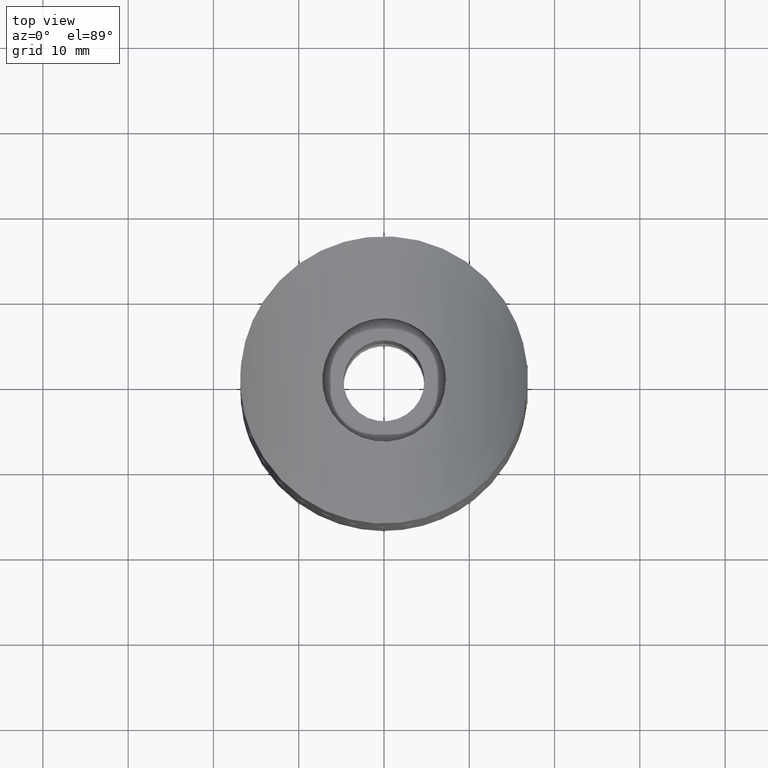
[diagram: clean part render]
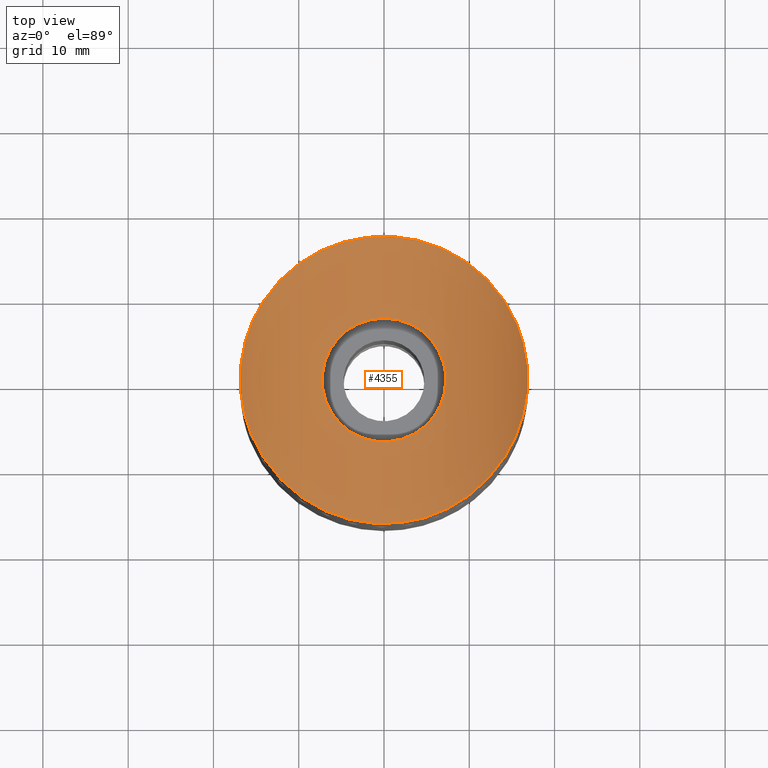
[diagram: same view with one face highlighted and labeled with its STEP entity id]
A machine part, top view. The second image highlights one B-rep face of the part: STEP entity #4355.
In plain terms, the highlighted cylindrical surface (partial cylindrical patch) has radius 21.2 mm, axis along (0, 1, 0).
Its self-contained STEP definition (entity closure, byte-faithful):
#7 = CARTESIAN_POINT ( 'NONE',  ( 12.14784170154766407, -11.68723754140081716, 28.82084089679802474 ) ) ;
#117 = CARTESIAN_POINT ( 'NONE',  ( -0.9587532348326602838, 7.190350821776163137, 25.02033660952204386 ) ) ;
#151 = CARTESIAN_POINT ( 'NONE',  ( 5.358378406793971926, -15.98417104893211693, 25.68166419200519712 ) ) ;
#154 = CARTESIAN_POINT ( 'NONE',  ( 8.169526389507437258, 14.74616821905684283, 26.63106651715606432 ) ) ;
#197 = CARTESIAN_POINT ( 'NONE',  ( 2.226111781718973504, -16.71136270365287047, 25.11004907578960044 ) ) ;
#204 = CARTESIAN_POINT ( 'NONE',  ( -5.336367273435848269, 15.99150897234712865, 25.67594462300922586 ) ) ;
#246 = CARTESIAN_POINT ( 'NONE',  ( -12.80575477641203008, -10.99506568324726885, 29.28733733575847964 ) ) ;
#254 = CARTESIAN_POINT ( 'NONE',  ( 8.612801258602942767, 14.49133680741023333, 26.82261412847639193 ) ) ;
#295 = CARTESIAN_POINT ( 'NONE',  ( -16.75380553784719950, 1.797915459636668878, 33.20961894323340147 ) ) ;
#402 = CARTESIAN_POINT ( 'NONE',  ( -0.4800756467866370003, 7.238085387647868352, 25.00408349533767094 ) ) ;
#560 = CARTESIAN_POINT ( 'NONE',  ( 1.658086648949340436, -7.061898216450463117, 25.06363438643857933 ) ) ;
#622 = EDGE_CURVE ( 'NONE', #13150, #10591, #10017, .T. ) ;
#657 = CARTESIAN_POINT ( 'NONE',  ( 5.892557090182336310, -4.230376132583586468, 25.83491791462317266 ) ) ;
#747 = CARTESIAN_POINT ( 'NONE',  ( 3.640337174190668712, -6.287877510260853064, 25.31099678021441335 ) ) ;
#790 = CARTESIAN_POINT ( 'NONE',  ( -0.9566369692030692873, -7.202342973613696131, 25.01643312506579875 ) ) ;
#833 = CARTESIAN_POINT ( 'NONE',  ( -4.960688375816871165, 5.292462506426915958, 25.58783515313074375 ) ) ;
#878 = CARTESIAN_POINT ( 'NONE',  ( -2.346359400707022314, 6.876387900135069842, 25.12556071525185075 ) ) ;
#931 = CARTESIAN_POINT ( 'NONE',  ( -3.223449022790387364, 6.498295588379971122, 25.24543072876374339 ) ) ;
#956 = CARTESIAN_POINT ( 'NONE',  ( 7.062527813327395876, 1.655145732846094120, 26.21092440739839446 ) ) ;
#965 = CARTESIAN_POINT ( 'NONE',  ( -16.83713731922741985, 0.6049456236737296155, 33.31781047734004630 ) ) ;
#976 = CARTESIAN_POINT ( 'NONE',  ( -0.4722111775666738565, -7.250316275388796861, 24.99989183980574836 ) ) ;
#1107 = CARTESIAN_POINT ( 'NONE',  ( -16.75380553784744464, -1.797915459634364943, 33.20961894323372121 ) ) ;
#1204 = CARTESIAN_POINT ( 'NONE',  ( -3.799131235580128774, 16.42494322206031043, 25.33634400596605118 ) ) ;
#1260 = CARTESIAN_POINT ( 'NONE',  ( 9.879719700273652094, 13.65886599007097146, 27.43734619141542908 ) ) ;
#1305 = CARTESIAN_POINT ( 'NONE',  ( 15.81468342291589657, 5.907119930207309189, 32.07368849711814818 ) ) ;
#1400 = CARTESIAN_POINT ( 'NONE',  ( -7.307117564174850699, 15.21988607760609469, 26.27266255987092336 ) ) ;
#1416 = ORIENTED_EDGE ( 'NONE', *, *, #12349, .F. ) ;
#1504 = CARTESIAN_POINT ( 'NONE',  ( -0.2388465963188745045, 7.250001156584477968, 24.99999960446994152 ) ) ;
#1543 = EDGE_CURVE ( 'NONE', #13599, #13599, #2425, .T. ) ;
#1692 = CARTESIAN_POINT ( 'NONE',  ( 0.9512028090831824434, 7.203228716476409943, 25.01613312446809090 ) ) ;
#1751 = CARTESIAN_POINT ( 'NONE',  ( 5.292002883686151016, -4.961068277643231994, 25.67041370422165514 ) ) ;
#1790 = CARTESIAN_POINT ( 'NONE',  ( -16.75380553784719950, 1.797915459636668878, 33.20961894323340147 ) ) ;
#1878 = CARTESIAN_POINT ( 'NONE',  ( -5.759433065516850192, -4.428706587053825139, 25.79549507831404398 ) ) ;
#2065 = CARTESIAN_POINT ( 'NONE',  ( -4.961887728149400267, -5.291291510677460508, 25.58813029866553634 ) ) ;
#2088 = CARTESIAN_POINT ( 'NONE',  ( 4.432367805953222550, 5.756904445230272671, 25.46463419026553154 ) ) ;
#2155 = CARTESIAN_POINT ( 'NONE',  ( 15.20531351964298850, -7.277979822336642535, 31.42358611185059303 ) ) ;
#2311 = CARTESIAN_POINT ( 'NONE',  ( 2.144770709731461444, 16.72175678162838608, 25.10180907550674689 ) ) ;
#2349 = CARTESIAN_POINT ( 'NONE',  ( -16.69637106392835690, -2.333116379150808495, 33.13554521106189554 ) ) ;
#2353 = CARTESIAN_POINT ( 'NONE',  ( 12.15067100014986501, 11.71608894380430321, 28.80603942311008936 ) ) ;
#2367 = B_SPLINE_CURVE_WITH_KNOTS ( 'NONE', 3,
 ( #3222, #13381, #10966, #4374, #12069, #7778, #5456, #13179, #7685, #8786, #2155, #9898, #3263, #12114, #13230, #7, #8836, #9947, #3318, #11052, #5554, #2446, #151, #5690, #10091, #3449, #197, #12512, #11207, #13568, #2537, #4764, #4572, #6744, #5799, #13428, #12457, #10181, #12314, #11393, #2393, #8032, #13523, #7880, #246, #3637, #12411, #3585, #11306, #10290, #8083, #5878, #4665, #3547, #2349, #10238 ),
 .UNSPECIFIED., .F., .F.,
 ( 4, 2, 2, 2, 2, 2, 2, 2, 2, 2, 2, 2, 2, 2, 2, 2, 2, 2, 2, 2, 2, 2, 2, 2, 2, 2, 2, 4 ),
 ( 0.05762379732413834554, 0.05843939610888660569, 0.05925499489363487277, 0.06088619246313139999, 0.06251739003262793415, 0.06414858760212446831, 0.06741098274111752275, 0.06904218031061404304, 0.07067337788011057720, 0.07393577301910363164, 0.07719816815809668609, 0.07882936572759322025, 0.08046056329708975441, 0.08209176086658628857, 0.08372295843608282273, 0.08535415600557935689, 0.08698535357507587717, 0.09024774871406893162, 0.09187894628356546578, 0.09351014385306199994, 0.09514134142255853410, 0.09677253899205506826, 0.1000349341310481366, 0.1016661317005446707, 0.1032973292700412049, 0.1065597244090342732, 0.1081909219785307796, 0.1098221195480273138 ),
 .UNSPECIFIED. ) ;
#2393 = CARTESIAN_POINT ( 'NONE',  ( -9.874391082289394106, -13.66273255866296665, 27.43453152128715189 ) ) ;
#2401 = CARTESIAN_POINT ( 'NONE',  ( 16.26849822515842092, 4.418982904158281322, 32.60477335205871441 ) ) ;
#2425 = B_SPLINE_CURVE_WITH_KNOTS ( 'NONE', 3,
 ( #2819, #6191, #10556, #11668, #5037, #11757, #12770, #7261, #9532, #657, #2952, #8389, #1751, #12868, #6236, #747, #4059, #11807, #6290, #7169, #560, #8284, #6331, #976, #790, #5415, #3049, #3187, #10787, #8708, #6371, #3090, #2065, #5229, #1878, #4199, #9806, #5275, #10927, #7454, #7546, #8528, #8654, #3147, #4288, #13138, #14020, #13006, #7407, #14117, #5320, #3002, #833, #10874, #7503, #13053, #10739, #12952, #931, #8568, #878, #8609, #6702, #117, #402, #1504, #2654, #1692, #7397, #8600, #9709, #5501, #11495, #10212, #2717, #11440, #2088, #6775, #13793, #13077, #12019, #10813, #6397, #6456, #4225, #956, #13035, #4176, #8686 ),
 .UNSPECIFIED., .T., .F.,
 ( 4, 2, 2, 2, 2, 2, 2, 2, 2, 2, 2, 2, 2, 2, 2, 2, 2, 2, 2, 2, 2, 1, 2, 2, 2, 2, 2, 2, 2, 2, 2, 2, 2, 2, 2, 2, 2, 2, 2, 2, 2, 2, 2, 2, 4 ),
 ( 0.000000000000000000, 0.001427308038129306532, 0.002140962057193959798, 0.002854616076258613064, 0.004281924114387921330, 0.004995578133452572428, 0.005709232152517225260, 0.007136540190646527455, 0.008563848228775828783, 0.009277502247840480748, 0.009991156266905130978, 0.01141846430503443144, 0.01284577234316373710, 0.01427308038129303583, 0.01570038841942233976, 0.01641404243848698999, 0.01712769645755164022, 0.01855500449568094068, 0.01998231253381023767, 0.02140962057193953813, 0.02212327459100418836, 0.02283692861006883512, 0.02355058262913348535, 0.02426423664819812864, 0.02569154468632742910, 0.02711885272445672262, 0.02854616076258602309, 0.02925981478165067332, 0.02997346880071532355, 0.03068712281977997031, 0.03140077683884461707, 0.03282808487697392447, 0.03354173889603856429, 0.03425539291510321799, 0.03568270095323251151, 0.03639635497229715827, 0.03711000899136181197, 0.03782366301042645179, 0.03853731702949110549, 0.03996462506762039901, 0.04139193310574969947, 0.04281924114387899993, 0.04353289516294364669, 0.04424654918200830039, 0.04567385722013758698 ),
 .UNSPECIFIED. ) ;
#2446 = CARTESIAN_POINT ( 'NONE',  ( 5.861876297262081259, -15.80630658064992744, 25.82008765974585884 ) ) ;
#2451 = CARTESIAN_POINT ( 'NONE',  ( -12.16653524012214227, 11.69924100671745570, 28.81735680001559174 ) ) ;
#2502 = CARTESIAN_POINT ( 'NONE',  ( -14.50563928189218466, 8.587789373369821178, 30.73546195249033630 ) ) ;
#2537 = CARTESIAN_POINT ( 'NONE',  ( -1.047622871701130221, -16.82617475906373272, 25.01895457081716856 ) ) ;
#2654 = CARTESIAN_POINT ( 'NONE',  ( 0.4777985065261786124, 7.249997686576094225, 25.00000079114732543 ) ) ;
#2717 = CARTESIAN_POINT ( 'NONE',  ( 3.636215122921611975, 6.276662310834707270, 25.31309908041850676 ) ) ;
#2819 = CARTESIAN_POINT ( 'NONE',  ( 7.250000000000000888, 4.336808689942017736E-16, 26.27821544138177146 ) ) ;
#2952 = CARTESIAN_POINT ( 'NONE',  ( 5.750198254161105638, -4.421941696019373147, 25.79413230358358078 ) ) ;
#3002 = CARTESIAN_POINT ( 'NONE',  ( -5.462926514089700980, 4.789915247397692255, 25.71304050749441927 ) ) ;
#3049 = CARTESIAN_POINT ( 'NONE',  ( -2.343731365980564973, -6.877354188263144152, 25.12524757484252547 ) ) ;
#3090 = CARTESIAN_POINT ( 'NONE',  ( -4.785265091308676944, -5.451572531739593330, 25.54627725870567900 ) ) ;
#3147 = CARTESIAN_POINT ( 'NONE',  ( -7.238519723795990402, 0.4726323275835445648, 26.27402570532306569 ) ) ;
#3187 = CARTESIAN_POINT ( 'NONE',  ( -3.226555368670444235, -6.510024408526108530, 25.24224232055189532 ) ) ;
#3222 = CARTESIAN_POINT ( 'NONE',  ( 16.75380553784718529, -1.797915459636763025, 33.20961894323338726 ) ) ;
#3263 = CARTESIAN_POINT ( 'NONE',  ( 13.99864917260999775, -9.428928461346940182, 30.26089817622014522 ) ) ;
#3285 = B_SPLINE_CURVE_WITH_KNOTS ( 'NONE', 3,
 ( #13238, #8940, #9997, #3364, #9905, #6554 ),
 .UNSPECIFIED., .F., .F.,
 ( 4, 2, 4 ),
 ( 0.006282603839248778431, 0.008077722740527721462, 0.009872841641806665361 ),
 .UNSPECIFIED. ) ;
#3318 = CARTESIAN_POINT ( 'NONE',  ( 9.922135874653822185, -13.65573024371412281, 27.44193756741609036 ) ) ;
#3364 = CARTESIAN_POINT ( 'NONE',  ( 16.83705808198703480, 0.6075081080287652036, 33.31770691421571229 ) ) ;
#3409 = CARTESIAN_POINT ( 'NONE',  ( 4.288095124775098910, 16.33153352628145427, 25.41009414772277353 ) ) ;
#3449 = CARTESIAN_POINT ( 'NONE',  ( 2.763565128029129347, -16.63055004528183645, 25.17409886494595028 ) ) ;
#3459 = CARTESIAN_POINT ( 'NONE',  ( -14.75306275984906179, 8.155817596017406856, 30.97203812562293024 ) ) ;
#3511 = CARTESIAN_POINT ( 'NONE',  ( 16.61322421872186794, 2.864456683789939451, 33.02921195284994837 ) ) ;
#3547 = CARTESIAN_POINT ( 'NONE',  ( -16.61395989766804604, -2.860104366934913322, 33.03014467461200354 ) ) ;
#3550 = CARTESIAN_POINT ( 'NONE',  ( 11.05725543779406905, 12.72420385158253175, 28.10678940156158490 ) ) ;
#3585 = CARTESIAN_POINT ( 'NONE',  ( -14.50379350185093053, -8.591077129407022284, 30.73367796759794146 ) ) ;
#3592 = CARTESIAN_POINT ( 'NONE',  ( -15.81691932689636637, 5.900288470181504152, 32.07626911739440345 ) ) ;
#3637 = CARTESIAN_POINT ( 'NONE',  ( -13.69523529492123615, -9.828637311950920719, 30.01275475370344381 ) ) ;
#3650 = EDGE_LOOP ( 'NONE', ( #12459 ) ) ;
#4059 = CARTESIAN_POINT ( 'NONE',  ( 3.224516823743702076, -6.510582053894638399, 25.24205241274554368 ) ) ;
#4127 = CARTESIAN_POINT ( 'NONE',  ( 0.000000000000000000, -16.85000000000000142, 46.20000000000000284 ) ) ;
#4176 = CARTESIAN_POINT ( 'NONE',  ( 7.250000000000000000, 0.4829326223636202231, 26.27821544138177146 ) ) ;
#4199 = CARTESIAN_POINT ( 'NONE',  ( -6.284210845800435763, -3.645984821129527820, 25.95096090228477692 ) ) ;
#4225 = CARTESIAN_POINT ( 'NONE',  ( 7.004554471377877789, 1.885653695091801252, 26.19046125019305293 ) ) ;
#4288 = CARTESIAN_POINT ( 'NONE',  ( -7.191716234747704384, 0.9480330731187178728, 26.25708554441513343 ) ) ;
#4355 = ADVANCED_FACE ( 'NONE', ( #5711, #8825 ), #7096, .F. ) ;
#4374 = CARTESIAN_POINT ( 'NONE',  ( 16.60678426932988216, -2.865252522061736862, 33.02201781672016523 ) ) ;
#4531 = CARTESIAN_POINT ( 'NONE',  ( -2.743212171241442565, 16.63390949165644628, 25.17144021655068187 ) ) ;
#4572 = CARTESIAN_POINT ( 'NONE',  ( -2.670267878382413418, -16.64599718174675758, 25.16187577647438900 ) ) ;
#4579 = CARTESIAN_POINT ( 'NONE',  ( -16.45308313992315163, 3.645481845178408342, 32.83050756234046474 ) ) ;
#4622 = CARTESIAN_POINT ( 'NONE',  ( 16.75380553784744819, 1.797915459634366275, 33.20961894323372121 ) ) ;
#4665 = CARTESIAN_POINT ( 'NONE',  ( -16.40117179362283650, -3.899413323456883962, 32.76607590578823448 ) ) ;
#4674 = CARTESIAN_POINT ( 'NONE',  ( -13.70251451450455882, 9.818345896335925360, 30.01897497850235297 ) ) ;
#4764 = CARTESIAN_POINT ( 'NONE',  ( -2.129375905199051289, -16.72373848630211057, 25.10023797743738072 ) ) ;
#5037 = CARTESIAN_POINT ( 'NONE',  ( 7.004391776076587028, -1.886298489068188644, 26.19040381408828466 ) ) ;
#5229 = CARTESIAN_POINT ( 'NONE',  ( -5.461870639133845629, -4.790913465329501797, 25.71278499240158055 ) ) ;
#5275 = CARTESIAN_POINT ( 'NONE',  ( -6.874786492142588301, -2.350090507094773962, 26.14472863026726301 ) ) ;
#5320 = CARTESIAN_POINT ( 'NONE',  ( -5.760815841621074185, 4.426872302757085542, 25.79588944834129549 ) ) ;
#5352 = CARTESIAN_POINT ( 'NONE',  ( -16.75380553784719950, 1.797915459636668878, 33.20961894323340147 ) ) ;
#5415 = CARTESIAN_POINT ( 'NONE',  ( -1.889748769253165817, -7.015536201140636585, 25.07921617399669856 ) ) ;
#5456 = CARTESIAN_POINT ( 'NONE',  ( 16.26802396891895341, -4.420290972579389077, 32.60423611358149998 ) ) ;
#5501 = CARTESIAN_POINT ( 'NONE',  ( 2.568855173014323423, 6.783761352755690588, 25.15506023593372475 ) ) ;
#5554 = CARTESIAN_POINT ( 'NONE',  ( 7.328113689039677858, -15.20969873285167218, 26.28045099295936637 ) ) ;
#5654 = CARTESIAN_POINT ( 'NONE',  ( -16.26338901050295149, 4.415185518121612418, 32.60027404866490741 ) ) ;
#5690 = CARTESIAN_POINT ( 'NONE',  ( 4.338623556160785100, -16.29055827495922415, 25.44209381662098934 ) ) ;
#5699 = CARTESIAN_POINT ( 'NONE',  ( 13.69601455258159106, 9.827532191674912099, 30.01342196753115132 ) ) ;
#5711 = FACE_BOUND ( 'NONE', #3650, .T. ) ;
#5754 = CARTESIAN_POINT ( 'NONE',  ( -8.216568726637952125, 14.74550625619387390, 26.63435696207914205 ) ) ;
#5799 = CARTESIAN_POINT ( 'NONE',  ( -5.295640238658860355, -16.03075755658450774, 25.64663496829462019 ) ) ;
#5878 = CARTESIAN_POINT ( 'NONE',  ( -16.26968676083988186, -4.414653115392175309, 32.60619533452197061 ) ) ;
#6191 = CARTESIAN_POINT ( 'NONE',  ( 7.250000000000000888, -0.4829326223636261628, 26.27821544138177146 ) ) ;
#6236 = CARTESIAN_POINT ( 'NONE',  ( 4.431842194841499882, -5.757450224349423884, 25.46449216879341293 ) ) ;
#6290 = CARTESIAN_POINT ( 'NONE',  ( 2.348359331223845992, -6.863274511579636084, 25.12922162904524370 ) ) ;
#6331 = CARTESIAN_POINT ( 'NONE',  ( 0.4818734902393386199, -7.249680505290641896, 25.00010926114104493 ) ) ;
#6371 = CARTESIAN_POINT ( 'NONE',  ( -4.419892896670888582, -5.751778146353815124, 25.46501574993814287 ) ) ;
#6397 = CARTESIAN_POINT ( 'NONE',  ( 6.783783114446718443, 2.568883994451139241, 26.11444431597576710 ) ) ;
#6456 = CARTESIAN_POINT ( 'NONE',  ( 6.865358533641771288, 2.342290632023552366, 26.14227638720989688 ) ) ;
#6554 = CARTESIAN_POINT ( 'NONE',  ( 16.75380553784744819, 1.797915459634366275, 33.20961894323372121 ) ) ;
#6702 = CARTESIAN_POINT ( 'NONE',  ( -1.194776294910109504, 7.154817448180724959, 25.03240748984039499 ) ) ;
#6744 = CARTESIAN_POINT ( 'NONE',  ( -4.275487582432500488, -16.33495995711751547, 25.40740007888074103 ) ) ;
#6751 = CARTESIAN_POINT ( 'NONE',  ( 6.769805067169788693, 15.43918504160768279, 26.10347206256634678 ) ) ;
#6775 = CARTESIAN_POINT ( 'NONE',  ( 4.794854175872543145, 5.458268951572305738, 25.54651072145666291 ) ) ;
#6804 = CARTESIAN_POINT ( 'NONE',  ( 14.75099718467579990, 8.159482255568171638, 30.97004999902917888 ) ) ;
#6845 = CARTESIAN_POINT ( 'NONE',  ( -13.98083161575371314, 9.418070111741503325, 30.25942738383626107 ) ) ;
#6892 = CARTESIAN_POINT ( 'NONE',  ( -16.39327470766794193, 3.905410301788218685, 32.75712410169236932 ) ) ;
#6948 = VERTEX_POINT ( 'NONE', #12925 ) ;
#7096 = CYLINDRICAL_SURFACE ( 'NONE', #10598, 21.19999999999999574 ) ;
#7169 = CARTESIAN_POINT ( 'NONE',  ( 1.892431338738990831, -7.002716058644915975, 25.08339051043943968 ) ) ;
#7261 = CARTESIAN_POINT ( 'NONE',  ( 6.509725557862076961, -3.226624134545732492, 26.02326916184721739 ) ) ;
#7397 = CARTESIAN_POINT ( 'NONE',  ( 1.654782290350953478, 7.062676068814879748, 25.06337429442421438 ) ) ;
#7407 = CARTESIAN_POINT ( 'NONE',  ( -6.512538062397737804, 3.220837523552804615, 26.02418295756668698 ) ) ;
#7454 = CARTESIAN_POINT ( 'NONE',  ( -7.155043788601264332, -1.193796978232354755, 26.24385170633055964 ) ) ;
#7503 = CARTESIAN_POINT ( 'NONE',  ( -4.420518731307494065, 5.751258890511367738, 25.46515579548953312 ) ) ;
#7546 = CARTESIAN_POINT ( 'NONE',  ( -7.190882583206957612, -0.9543925950206314512, 26.25678463686065101 ) ) ;
#7685 = CARTESIAN_POINT ( 'NONE',  ( 15.79722130753614273, -5.884323297562113808, 32.05903466573799676 ) ) ;
#7751 = B_SPLINE_CURVE_WITH_KNOTS ( 'NONE', 3,
 ( #295, #9119, #13529, #4579, #6892, #5654, #7837, #3592, #8040, #3459, #2502, #6845, #4674, #10046, #2451, #12370, #10244, #11314, #12416, #5754, #1400, #12262, #204, #11353, #1204, #4531, #13477, #12464, #13335, #8937, #12321, #2311, #13390, #3409, #11168, #6751, #11213, #154, #254, #7889, #1260, #8983, #3550, #2353, #10097, #5699, #10187, #13432, #6804, #7931, #1305, #2401, #10141, #3511, #11261, #4622 ),
 .UNSPECIFIED., .F., .F.,
 ( 4, 2, 2, 2, 2, 2, 2, 2, 2, 2, 2, 2, 2, 2, 2, 2, 2, 2, 2, 2, 2, 2, 2, 2, 2, 2, 2, 4 ),
 ( 0.001797071188729705820, 0.003429396536276128025, 0.004245559210049341947, 0.005061721883822555001, 0.008326372578915426301, 0.009958697926461862818, 0.01159102327400829760, 0.01485567396910117063, 0.01648799931664760368, 0.01812032466419403673, 0.02138497535928690976, 0.02301730070683334975, 0.02464962605437978974, 0.02628195140192622972, 0.02791427674947266971, 0.02954660209701910970, 0.03117892744456554621, 0.03444357813965841925, 0.03607590348720485229, 0.03770822883475128534, 0.03934055418229771839, 0.04097287952984415144, 0.04423753022493701753, 0.04586985557248345752, 0.04750218092002989750, 0.05076683161512276360, 0.05239915696266919665, 0.05403148231021562969 ),
 .UNSPECIFIED. ) ;
#7778 = CARTESIAN_POINT ( 'NONE',  ( 16.39769156396029359, -3.914395231886452109, 32.76180958509625896 ) ) ;
#7837 = CARTESIAN_POINT ( 'NONE',  ( -16.19317297380285581, 4.665861560800693475, 32.51663168366926726 ) ) ;
#7880 = CARTESIAN_POINT ( 'NONE',  ( -12.14829044945831527, -11.71866700652318904, 28.80431455712911770 ) ) ;
#7889 = CARTESIAN_POINT ( 'NONE',  ( 9.467902566528589858, 13.94768830224980682, 27.22574771631734336 ) ) ;
#7931 = CARTESIAN_POINT ( 'NONE',  ( 15.43333503724850075, 6.835272058449380239, 31.65127670461850684 ) ) ;
#7963 = ORIENTED_EDGE ( 'NONE', *, *, #11146, .F. ) ;
#8032 = CARTESIAN_POINT ( 'NONE',  ( -10.66925105049445222, -13.05147279953754769, 27.87478544482808118 ) ) ;
#8040 = CARTESIAN_POINT ( 'NONE',  ( -15.43657138871976287, 6.828297707567234198, 31.65465715993374829 ) ) ;
#8083 = CARTESIAN_POINT ( 'NONE',  ( -15.81587402105427387, -5.904075427236818996, 32.07502002598859292 ) ) ;
#8162 = EDGE_CURVE ( 'NONE', #6948, #11564, #3285, .T. ) ;
#8284 = CARTESIAN_POINT ( 'NONE',  ( 0.9548202249930327623, -7.202739017739377303, 25.01630039204184897 ) ) ;
#8348 = EDGE_LOOP ( 'NONE', ( #7963, #13801, #1416, #12166 ) ) ;
#8389 = CARTESIAN_POINT ( 'NONE',  ( 5.450020823086105359, -4.787026358093296352, 25.71191835642643042 ) ) ;
#8528 = CARTESIAN_POINT ( 'NONE',  ( -7.238136233160389565, -0.4785803622761156673, 26.27388614418867618 ) ) ;
#8568 = CARTESIAN_POINT ( 'NONE',  ( -3.007011386368376282, 6.601309398131062878, 25.21316529528078831 ) ) ;
#8600 = CARTESIAN_POINT ( 'NONE',  ( 1.889166000319857597, 7.003606587722266852, 25.08309510850801516 ) ) ;
#8609 = CARTESIAN_POINT ( 'NONE',  ( -1.893306789193654582, 7.014520785390482516, 25.07955394206430455 ) ) ;
#8654 = CARTESIAN_POINT ( 'NONE',  ( -7.261670843123232189, -0.002871798025565951758, 26.28247452916107108 ) ) ;
#8686 = CARTESIAN_POINT ( 'NONE',  ( 7.250000000000000888, 4.336808689942017736E-16, 26.27821544138177146 ) ) ;
#8687 = DIRECTION ( 'NONE',  ( 0.000000000000000000, 0.000000000000000000, 1.000000000000000000 ) ) ;
#8694 = CARTESIAN_POINT ( 'NONE',  ( -16.83705808198703480, -0.6075081080287976221, 33.31770691421569808 ) ) ;
#8708 = CARTESIAN_POINT ( 'NONE',  ( -4.230815641621740397, -5.892201612857570936, 25.42550046882274373 ) ) ;
#8786 = CARTESIAN_POINT ( 'NONE',  ( 15.41652502934092794, -6.819693375014072245, 31.64493704432103627 ) ) ;
#8825 = FACE_OUTER_BOUND ( 'NONE', #8348, .T. ) ;
#8836 = CARTESIAN_POINT ( 'NONE',  ( 11.80069880928318682, -12.03796462434776693, 28.58264790919936260 ) ) ;
#8937 = CARTESIAN_POINT ( 'NONE',  ( 0.5219374642350144144, 16.85068932348676185, 24.99945211805962586 ) ) ;
#8940 = CARTESIAN_POINT ( 'NONE',  ( 16.80920135048671682, -1.206151923607039045, 33.28106339651910162 ) ) ;
#8983 = CARTESIAN_POINT ( 'NONE',  ( 10.67375571841074766, 13.04777453646355134, 27.87741890015321999 ) ) ;
#9119 = CARTESIAN_POINT ( 'NONE',  ( -16.69628913397185599, 2.333879840274673878, 33.13543954529636437 ) ) ;
#9532 = CARTESIAN_POINT ( 'NONE',  ( 6.286913508811759144, -3.641491956531571095, 25.95179247060378458 ) ) ;
#9688 = CARTESIAN_POINT ( 'NONE',  ( 16.75380553784744819, 1.797915459634366275, 33.20961894323372121 ) ) ;
#9709 = CARTESIAN_POINT ( 'NONE',  ( 2.345654572570459173, 6.864208478661655732, 25.12891732731176830 ) ) ;
#9806 = CARTESIAN_POINT ( 'NONE',  ( -6.511739008375247550, -3.222246078574277917, 26.02392867496321571 ) ) ;
#9898 = CARTESIAN_POINT ( 'NONE',  ( 14.52070012751384454, -8.606042406746979623, 30.74020911186212857 ) ) ;
#9905 = CARTESIAN_POINT ( 'NONE',  ( 16.80918772287897411, 1.206297499976663135, 33.28104582087686225 ) ) ;
#9947 = CARTESIAN_POINT ( 'NONE',  ( 10.70661871493656392, -13.04902886926198313, 27.88173960203671342 ) ) ;
#9997 = CARTESIAN_POINT ( 'NONE',  ( 16.83713731922741630, -0.6049456236737968950, 33.31781047734005341 ) ) ;
#10017 = B_SPLINE_CURVE_WITH_KNOTS ( 'NONE', 3,
 ( #5352, #10915, #965, #8694, #10863, #1107 ),
 .UNSPECIFIED., .F., .F.,
 ( 4, 2, 4 ),
 ( 0.006282603839248886851, 0.008077722740527780443, 0.009872841641806674035 ),
 .UNSPECIFIED. ) ;
#10046 = CARTESIAN_POINT ( 'NONE',  ( -12.81924726272118953, 10.97882872889603867, 29.29778716607261302 ) ) ;
#10091 = CARTESIAN_POINT ( 'NONE',  ( 3.819823308502365844, -16.42015337678989084, 25.34011599625377897 ) ) ;
#10097 = CARTESIAN_POINT ( 'NONE',  ( 12.80735689825122847, 10.99313075027084174, 29.28858074011126078 ) ) ;
#10141 = CARTESIAN_POINT ( 'NONE',  ( 16.39995856442145694, 3.904572975383503675, 32.76459022546254829 ) ) ;
#10181 = CARTESIAN_POINT ( 'NONE',  ( -8.161898109808259250, -14.75041744657117881, 26.62786449763916252 ) ) ;
#10187 = CARTESIAN_POINT ( 'NONE',  ( 13.97603220644063882, 9.425331887618698445, 30.25517287783123166 ) ) ;
#10212 = CARTESIAN_POINT ( 'NONE',  ( 3.218975471921121212, 6.500518986633828433, 25.24474081869308151 ) ) ;
#10238 = CARTESIAN_POINT ( 'NONE',  ( -16.75380553784744464, -1.797915459634364943, 33.20961894323372121 ) ) ;
#10244 = CARTESIAN_POINT ( 'NONE',  ( -10.69725563323686579, 13.02852624726641650, 27.89112979285645011 ) ) ;
#10290 = CARTESIAN_POINT ( 'NONE',  ( -15.43430176968157674, -6.833269803921846908, 31.65226904028011035 ) ) ;
#10556 = CARTESIAN_POINT ( 'NONE',  ( 7.202236549575339097, -0.9570018828714323966, 26.26065258830764293 ) ) ;
#10591 = VERTEX_POINT ( 'NONE', #10746 ) ;
#10598 = AXIS2_PLACEMENT_3D ( 'NONE', #4127, #11837, #8687 ) ;
#10739 = CARTESIAN_POINT ( 'NONE',  ( -3.841864781931650707, 6.152863332618361270, 25.35007052466595923 ) ) ;
#10746 = CARTESIAN_POINT ( 'NONE',  ( -16.75380553784744464, -1.797915459634364943, 33.20961894323372121 ) ) ;
#10787 = CARTESIAN_POINT ( 'NONE',  ( -3.644503179383112190, -6.285018690129448693, 25.31181856569206445 ) ) ;
#10813 = CARTESIAN_POINT ( 'NONE',  ( 6.509851379537833438, 3.226429652034603635, 26.02330857311110535 ) ) ;
#10863 = CARTESIAN_POINT ( 'NONE',  ( -16.80918772287897411, -1.206297499976677789, 33.28104582087686225 ) ) ;
#10874 = CARTESIAN_POINT ( 'NONE',  ( -4.784453945466627722, 5.452244044724640304, 25.54609599899160699 ) ) ;
#10915 = CARTESIAN_POINT ( 'NONE',  ( -16.80920135048672392, 1.206151923606957777, 33.28106339651910162 ) ) ;
#10927 = CARTESIAN_POINT ( 'NONE',  ( -7.013546906630639732, -1.897859625115785320, 26.19349642912580478 ) ) ;
#10966 = CARTESIAN_POINT ( 'NONE',  ( 16.68983104180946597, -2.333344290733118775, 33.12735535605911252 ) ) ;
#11052 = CARTESIAN_POINT ( 'NONE',  ( 8.232750737893814730, -14.73599552428981951, 26.64148518349316674 ) ) ;
#11146 = EDGE_CURVE ( 'NONE', #6948, #10591, #2367, .T. ) ;
#11168 = CARTESIAN_POINT ( 'NONE',  ( 5.306850470216027738, 16.02699658927675230, 25.64957126391556130 ) ) ;
#11207 = CARTESIAN_POINT ( 'NONE',  ( 0.5841043057721526655, -16.84867426340133534, 25.00105370940486793 ) ) ;
#11213 = CARTESIAN_POINT ( 'NONE',  ( 7.248630009870074886, 15.21998691042773189, 26.27158606248755746 ) ) ;
#11261 = CARTESIAN_POINT ( 'NONE',  ( 16.69606477119892673, 2.335970556080453786, 33.13515018270945234 ) ) ;
#11306 = CARTESIAN_POINT ( 'NONE',  ( -14.75118604601161998, -8.159178700619847291, 30.97022498411584479 ) ) ;
#11314 = CARTESIAN_POINT ( 'NONE',  ( -9.903849118679035612, 13.64139094421709864, 27.45007256069275314 ) ) ;
#11353 = CARTESIAN_POINT ( 'NONE',  ( -4.317588479607628038, 16.29612237958512821, 25.43772424526779474 ) ) ;
#11393 = CARTESIAN_POINT ( 'NONE',  ( -9.462089858984089830, -13.95165178289191132, 27.22283437220676916 ) ) ;
#11440 = CARTESIAN_POINT ( 'NONE',  ( 3.841002185440882233, 6.153497826531594050, 25.34989155617825674 ) ) ;
#11495 = CARTESIAN_POINT ( 'NONE',  ( 3.005515933869999490, 6.601917067209928547, 25.21297113585742622 ) ) ;
#11564 = VERTEX_POINT ( 'NONE', #9688 ) ;
#11668 = CARTESIAN_POINT ( 'NONE',  ( 7.062438076636139428, -1.655554104716792096, 26.21089259011971961 ) ) ;
#11757 = CARTESIAN_POINT ( 'NONE',  ( 6.864947048405166896, -2.343528998161403365, 26.14213506629842243 ) ) ;
#11807 = CARTESIAN_POINT ( 'NONE',  ( 2.571139155122229347, -6.782876624395626663, 25.15534480208394896 ) ) ;
#11837 = DIRECTION ( 'NONE',  ( -0.000000000000000000, 1.000000000000000000, -0.000000000000000000 ) ) ;
#12019 = CARTESIAN_POINT ( 'NONE',  ( 6.287238633193505954, 3.640728091337462669, 25.95190742098767700 ) ) ;
#12069 = CARTESIAN_POINT ( 'NONE',  ( 16.55869545670852006, -3.131002145723943642, 32.96153644354916423 ) ) ;
#12114 = CARTESIAN_POINT ( 'NONE',  ( 13.11605269385810679, -10.58903935107858985, 29.54006458195000562 ) ) ;
#12166 = ORIENTED_EDGE ( 'NONE', *, *, #622, .T. ) ;
#12262 = CARTESIAN_POINT ( 'NONE',  ( -5.838225507060470498, 15.81507896776697386, 25.81328106177775084 ) ) ;
#12283 = CARTESIAN_POINT ( 'NONE',  ( 7.250000000000000000, 0.000000000000000000, 26.27821544138177146 ) ) ;
#12314 = CARTESIAN_POINT ( 'NONE',  ( -8.605838591192126685, -14.49549150987674651, 26.81950718102002185 ) ) ;
#12321 = CARTESIAN_POINT ( 'NONE',  ( 1.063993972526199316, 16.82513322644681253, 25.01978237812180339 ) ) ;
#12349 = EDGE_CURVE ( 'NONE', #13150, #11564, #7751, .T. ) ;
#12370 = CARTESIAN_POINT ( 'NONE',  ( -11.07962249389864695, 12.70464660521076716, 28.12053149330794710 ) ) ;
#12411 = CARTESIAN_POINT ( 'NONE',  ( -13.97546826525529262, -9.426182628964703270, 30.25467372798096122 ) ) ;
#12416 = CARTESIAN_POINT ( 'NONE',  ( -9.493096010451701261, 13.93048786777047710, 27.23838811128990756 ) ) ;
#12457 = CARTESIAN_POINT ( 'NONE',  ( -7.239436499536627601, -15.22438684388241370, 26.26822566737115849 ) ) ;
#12459 = ORIENTED_EDGE ( 'NONE', *, *, #1543, .T. ) ;
#12464 = CARTESIAN_POINT ( 'NONE',  ( -1.110949988475411487, 16.82232410423466362, 25.02201606362497444 ) ) ;
#12512 = CARTESIAN_POINT ( 'NONE',  ( 1.131191374759157320, -16.82098757955128931, 25.02307836998064161 ) ) ;
#12770 = CARTESIAN_POINT ( 'NONE',  ( 6.783481717695231339, -2.569661129754951645, 26.11434282070458224 ) ) ;
#12868 = CARTESIAN_POINT ( 'NONE',  ( 4.794506645124587685, -5.458495940767763344, 25.54644006431659875 ) ) ;
#12925 = CARTESIAN_POINT ( 'NONE',  ( 16.75380553784718529, -1.797915459636763025, 33.20961894323338726 ) ) ;
#12952 = CARTESIAN_POINT ( 'NONE',  ( -3.640238106544555929, 6.274323524026140575, 25.31380208191953685 ) ) ;
#13006 = CARTESIAN_POINT ( 'NONE',  ( -6.876303559639469043, 2.345931738775585362, 26.14524508502755751 ) ) ;
#13035 = CARTESIAN_POINT ( 'NONE',  ( 7.202198424912304553, 0.9571122672483782789, 26.26063926573250740 ) ) ;
#13053 = CARTESIAN_POINT ( 'NONE',  ( -4.232005378712566213, 5.891331145596399921, 25.42574635267014216 ) ) ;
#13077 = CARTESIAN_POINT ( 'NONE',  ( 5.763426133025922660, 4.423481646274624701, 25.79662915280593083 ) ) ;
#13138 = CARTESIAN_POINT ( 'NONE',  ( -7.156177727786750431, 1.187067269414618709, 26.24425862712032398 ) ) ;
#13150 = VERTEX_POINT ( 'NONE', #1790 ) ;
#13179 = CARTESIAN_POINT ( 'NONE',  ( 15.96780198721222455, -5.405263715376884548, 32.25286053680741105 ) ) ;
#13230 = CARTESIAN_POINT ( 'NONE',  ( 12.80511607947298280, -10.96314651668087414, 29.29928311190644052 ) ) ;
#13238 = CARTESIAN_POINT ( 'NONE',  ( 16.75380553784718529, -1.797915459636763025, 33.20961894323338726 ) ) ;
#13335 = CARTESIAN_POINT ( 'NONE',  ( -0.5655346474773457199, 16.84928247599124163, 25.00057029603105718 ) ) ;
#13381 = CARTESIAN_POINT ( 'NONE',  ( 16.72501149668051923, -2.066231616422521622, 33.17248302210472843 ) ) ;
#13390 = CARTESIAN_POINT ( 'NONE',  ( 2.685829350290289685, 16.64346365637013392, 25.16388089529019467 ) ) ;
#13428 = CARTESIAN_POINT ( 'NONE',  ( -6.760111160549207021, -15.44344587327716667, 26.10019771209238826 ) ) ;
#13432 = CARTESIAN_POINT ( 'NONE',  ( 14.50402328495608728, 8.590673196943274803, 30.73389846338883302 ) ) ;
#13477 = CARTESIAN_POINT ( 'NONE',  ( -2.205245963399959486, 16.71411644047380207, 25.10786630691053389 ) ) ;
#13523 = CARTESIAN_POINT ( 'NONE',  ( -11.05315867005546515, -12.72778801395283388, 28.10427145339251709 ) ) ;
#13529 = CARTESIAN_POINT ( 'NONE',  ( -16.61362573693858735, 2.862493780592012094, 33.02971028138078680 ) ) ;
#13568 = CARTESIAN_POINT ( 'NONE',  ( -0.5049331366982651170, -16.85123273833959345, 24.99902020662671376 ) ) ;
#13599 = VERTEX_POINT ( 'NONE', #12283 ) ;
#13793 = CARTESIAN_POINT ( 'NONE',  ( 5.459349115452878820, 4.793624281395492126, 25.71213156078966122 ) ) ;
#13801 = ORIENTED_EDGE ( 'NONE', *, *, #8162, .T. ) ;
#14020 = CARTESIAN_POINT ( 'NONE',  ( -7.015049260418604327, 1.892516147631740031, 26.19402445453779293 ) ) ;
#14117 = CARTESIAN_POINT ( 'NONE',  ( -6.285011176621773110, 3.644561984070174177, 25.95121334313776629 ) ) ;